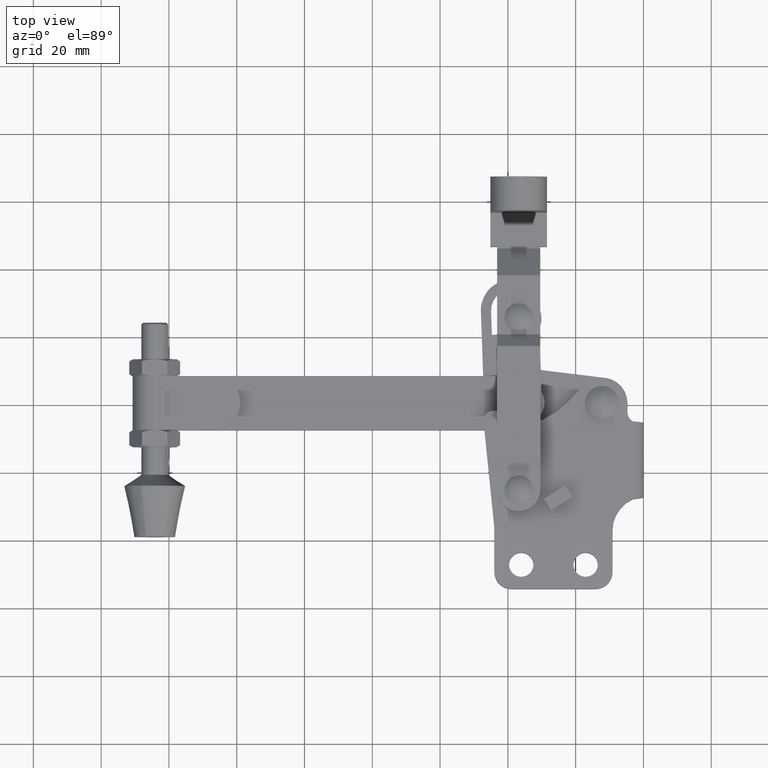
[diagram: clean part render]
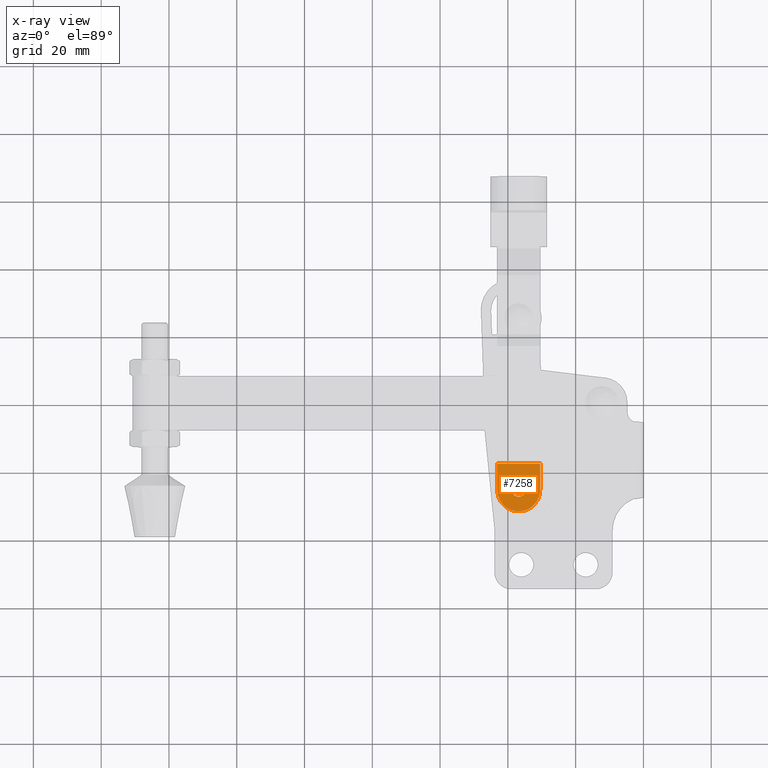
[diagram: x-ray — body ghosted, one internal face saturated and labeled with its STEP entity id]
A machine part, top view, then the same camera in x-ray: the body is ghosted and one INTERNAL B-rep face — a face not visible from any outside direction — is saturated and labeled: STEP entity #7258.
In plain terms, the highlighted planar face has unit normal (0, 0, 1).
Its self-contained STEP definition (entity closure, byte-faithful):
#521 = CARTESIAN_POINT ( 'NONE',  ( -36.80000000000016800, 14.09999999999989100, 5.999999999999992000 ) ) ;
#575 = FACE_BOUND ( 'NONE', #2698, .T. ) ;
#705 = DIRECTION ( 'NONE',  ( 0.0000000000000000000, -1.000000000000000000, 0.0000000000000000000 ) ) ;
#741 = VECTOR ( 'NONE', #5887, 1000.000000000000000 ) ;
#840 = VERTEX_POINT ( 'NONE', #9278 ) ;
#1046 = CARTESIAN_POINT ( 'NONE',  ( -43.15000000000017600, -26.32467528299208600, 5.999999999999998200 ) ) ;
#1351 = DIRECTION ( 'NONE',  ( 0.0000000000000000000, -1.000000000000000000, 0.0000000000000000000 ) ) ;
#1589 = ORIENTED_EDGE ( 'NONE', *, *, #8324, .T. ) ;
#1776 = VECTOR ( 'NONE', #1874, 1000.000000000000000 ) ;
#1874 = DIRECTION ( 'NONE',  ( 0.0000000000000000000, 1.000000000000000000, -1.915454074022858400E-020 ) ) ;
#2164 = ORIENTED_EDGE ( 'NONE', *, *, #8530, .F. ) ;
#2176 = CIRCLE ( 'NONE', #10562, 2.000000000000001800 ) ;
#2281 = EDGE_CURVE ( 'NONE', #8886, #840, #7389, .T. ) ;
#2293 = EDGE_LOOP ( 'NONE', ( #2164, #1589, #9597, #7771 ) ) ;
#2345 = DIRECTION ( 'NONE',  ( 1.658530013599391000E-018, 1.915454074022922200E-020, 1.000000000000000000 ) ) ;
#2402 = VERTEX_POINT ( 'NONE', #2412 ) ;
#2412 = CARTESIAN_POINT ( 'NONE',  ( -38.80000000000016800, 14.09999999999989100, 5.999999999999992000 ) ) ;
#2559 = CIRCLE ( 'NONE', #2734, 6.350000000000022700 ) ;
#2662 = CARTESIAN_POINT ( 'NONE',  ( -34.80000000000016800, 14.09999999999989100, 5.999999999999992000 ) ) ;
#2698 = EDGE_LOOP ( 'NONE', ( #6950, #10608 ) ) ;
#2723 = DIRECTION ( 'NONE',  ( 1.658530013599391000E-018, 1.915454074022922200E-020, 1.000000000000000000 ) ) ;
#2734 = AXIS2_PLACEMENT_3D ( 'NONE', #7325, #2345, #8155 ) ;
#3088 = DIRECTION ( 'NONE',  ( 0.0000000000000000000, 1.000000000000000000, -1.915454074022858400E-020 ) ) ;
#3164 = LINE ( 'NONE', #5592, #7339 ) ;
#3328 = CARTESIAN_POINT ( 'NONE',  ( -30.45000000000013100, 14.09999999999989100, 5.999999999999998200 ) ) ;
#4363 = PLANE ( 'NONE',  #5849 ) ;
#4369 = VERTEX_POINT ( 'NONE', #2662 ) ;
#5592 = CARTESIAN_POINT ( 'NONE',  ( -30.45000000000017300, -26.32467528299208600, 5.999999999999998200 ) ) ;
#5686 = DIRECTION ( 'NONE',  ( 1.658530013599391000E-018, 4.958268242579200900E-017, 1.000000000000000000 ) ) ;
#5816 = CARTESIAN_POINT ( 'NONE',  ( -30.45000000000017300, 21.85999999999986400, 5.999999999999998200 ) ) ;
#5849 = AXIS2_PLACEMENT_3D ( 'NONE', #7701, #2723, #8523 ) ;
#5887 = DIRECTION ( 'NONE',  ( -1.000000000000000000, 0.0000000000000000000, 1.658530013599391000E-018 ) ) ;
#6343 = DIRECTION ( 'NONE',  ( 1.658530013599391000E-018, 4.958268242579200900E-017, 1.000000000000000000 ) ) ;
#6950 = ORIENTED_EDGE ( 'NONE', *, *, #8056, .T. ) ;
#6964 = FACE_OUTER_BOUND ( 'NONE', #2293, .T. ) ;
#7258 = ADVANCED_FACE ( 'NONE', ( #6964, #575 ), #4363, .F. ) ;
#7325 = CARTESIAN_POINT ( 'NONE',  ( -36.80000000000015300, 14.09999999999989100, 5.999999999999998200 ) ) ;
#7339 = VECTOR ( 'NONE', #3088, 1000.000000000000000 ) ;
#7371 = EDGE_CURVE ( 'NONE', #10676, #8886, #3164, .T. ) ;
#7389 = LINE ( 'NONE', #5816, #741 ) ;
#7489 = CIRCLE ( 'NONE', #8644, 2.000000000000001800 ) ;
#7556 = CARTESIAN_POINT ( 'NONE',  ( -43.15000000000017600, 14.09999999999989100, 5.999999999999998200 ) ) ;
#7701 = CARTESIAN_POINT ( 'NONE',  ( -30.45000000000017300, -26.32467528299208600, 5.999999999999998200 ) ) ;
#7771 = ORIENTED_EDGE ( 'NONE', *, *, #7371, .F. ) ;
#8056 = EDGE_CURVE ( 'NONE', #2402, #4369, #2176, .T. ) ;
#8155 = DIRECTION ( 'NONE',  ( 1.000000000000000000, 0.0000000000000000000, 0.0000000000000000000 ) ) ;
#8324 = EDGE_CURVE ( 'NONE', #9620, #840, #8402, .T. ) ;
#8402 = LINE ( 'NONE', #1046, #1776 ) ;
#8523 = DIRECTION ( 'NONE',  ( 1.000000000000000000, 0.0000000000000000000, -1.658530013599391000E-018 ) ) ;
#8530 = EDGE_CURVE ( 'NONE', #9620, #10676, #2559, .T. ) ;
#8644 = AXIS2_PLACEMENT_3D ( 'NONE', #521, #6343, #1351 ) ;
#8876 = EDGE_CURVE ( 'NONE', #4369, #2402, #7489, .T. ) ;
#8886 = VERTEX_POINT ( 'NONE', #10439 ) ;
#9278 = CARTESIAN_POINT ( 'NONE',  ( -43.15000000000017600, 21.85999999999986400, 5.999999999999998200 ) ) ;
#9597 = ORIENTED_EDGE ( 'NONE', *, *, #2281, .F. ) ;
#9620 = VERTEX_POINT ( 'NONE', #7556 ) ;
#10439 = CARTESIAN_POINT ( 'NONE',  ( -30.45000000000017300, 21.85999999999986400, 5.999999999999998200 ) ) ;
#10562 = AXIS2_PLACEMENT_3D ( 'NONE', #10648, #5686, #705 ) ;
#10608 = ORIENTED_EDGE ( 'NONE', *, *, #8876, .T. ) ;
#10648 = CARTESIAN_POINT ( 'NONE',  ( -36.80000000000016800, 14.09999999999989100, 5.999999999999992000 ) ) ;
#10676 = VERTEX_POINT ( 'NONE', #3328 ) ;